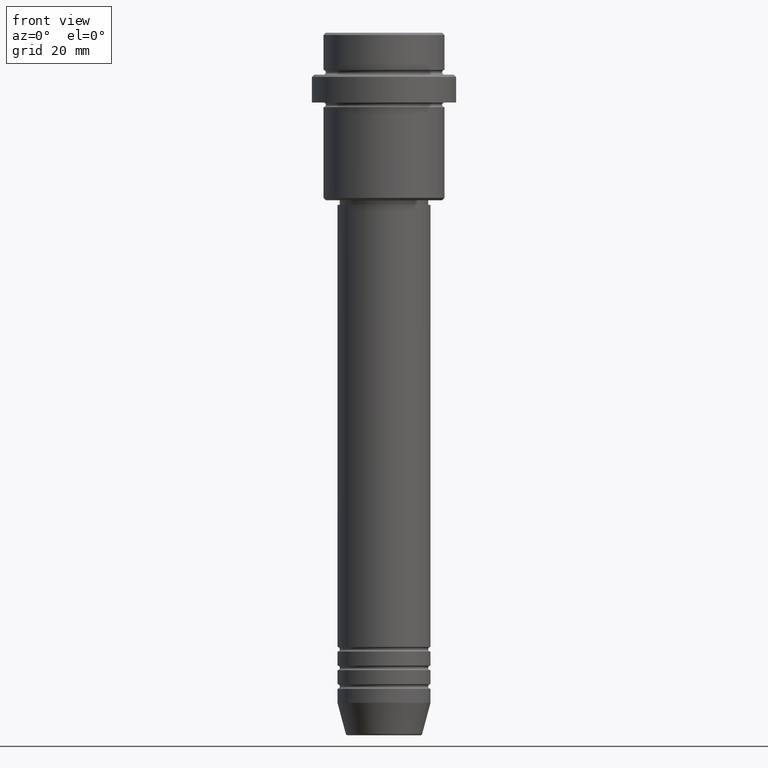
[diagram: clean part render]
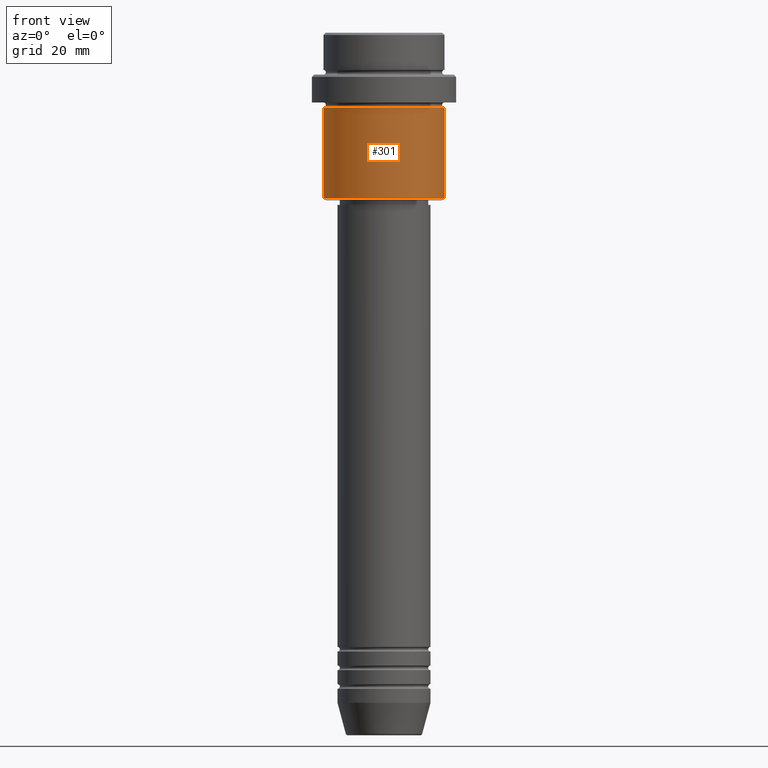
[diagram: same view with one face highlighted and labeled with its STEP entity id]
A machine part, front view. The second image highlights one B-rep face of the part: STEP entity #301.
In plain terms, the highlighted cylindrical surface (partial cylindrical patch) has radius 13 mm, axis along (-0, -0, 1).
Its self-contained STEP definition (entity closure, byte-faithful):
#8 = EDGE_CURVE ( 'NONE', #334, #921, #218, .T. ) ;
#43 = ORIENTED_EDGE ( 'NONE', *, *, #610, .T. ) ;
#96 = VERTEX_POINT ( 'NONE', #195 ) ;
#189 = LINE ( 'NONE', #627, #332 ) ;
#195 = CARTESIAN_POINT ( 'NONE',  ( -13.00000000000000000, 1.592040838891559095E-15, -35.50000000000000000 ) ) ;
#212 = DIRECTION ( 'NONE',  ( -0.000000000000000000, -0.000000000000000000, 1.000000000000000000 ) ) ;
#218 = CIRCLE ( 'NONE', #1021, 13.00000000000000000 ) ;
#301 = ADVANCED_FACE ( 'NONE', ( #965 ), #1384, .T. ) ;
#332 = VECTOR ( 'NONE', #1061, 1000.000000000000000 ) ;
#334 = VERTEX_POINT ( 'NONE', #950 ) ;
#341 = LINE ( 'NONE', #675, #1054 ) ;
#407 = CARTESIAN_POINT ( 'NONE',  ( 0.000000000000000000, 0.000000000000000000, 0.000000000000000000 ) ) ;
#411 = DIRECTION ( 'NONE',  ( 1.000000000000000000, 0.000000000000000000, 0.000000000000000000 ) ) ;
#444 = CIRCLE ( 'NONE', #790, 13.00000000000000000 ) ;
#610 = EDGE_CURVE ( 'NONE', #96, #1013, #444, .T. ) ;
#627 = CARTESIAN_POINT ( 'NONE',  ( -13.00000000000000000, 1.592040838891559095E-15, 0.000000000000000000 ) ) ;
#628 = EDGE_CURVE ( 'NONE', #96, #334, #189, .T. ) ;
#675 = CARTESIAN_POINT ( 'NONE',  ( 13.00000000000000000, 0.000000000000000000, 0.000000000000000000 ) ) ;
#714 = EDGE_LOOP ( 'NONE', ( #801, #43, #1396, #1064 ) ) ;
#790 = AXIS2_PLACEMENT_3D ( 'NONE', #1269, #212, #845 ) ;
#801 = ORIENTED_EDGE ( 'NONE', *, *, #628, .F. ) ;
#837 = DIRECTION ( 'NONE',  ( -0.000000000000000000, -0.000000000000000000, 1.000000000000000000 ) ) ;
#845 = DIRECTION ( 'NONE',  ( -1.000000000000000000, 0.000000000000000000, 0.000000000000000000 ) ) ;
#846 = DIRECTION ( 'NONE',  ( -0.000000000000000000, -0.000000000000000000, 1.000000000000000000 ) ) ;
#904 = CARTESIAN_POINT ( 'NONE',  ( 13.00000000000000000, 0.000000000000000000, -15.99999999999997335 ) ) ;
#921 = VERTEX_POINT ( 'NONE', #904 ) ;
#950 = CARTESIAN_POINT ( 'NONE',  ( -13.00000000000000000, 1.592040838891559095E-15, -15.99999999999997335 ) ) ;
#965 = FACE_OUTER_BOUND ( 'NONE', #714, .T. ) ;
#1011 = DIRECTION ( 'NONE',  ( -0.000000000000000000, -0.000000000000000000, 1.000000000000000000 ) ) ;
#1013 = VERTEX_POINT ( 'NONE', #1035 ) ;
#1021 = AXIS2_PLACEMENT_3D ( 'NONE', #1288, #837, #411 ) ;
#1035 = CARTESIAN_POINT ( 'NONE',  ( 13.00000000000000000, 0.000000000000000000, -35.50000000000000000 ) ) ;
#1054 = VECTOR ( 'NONE', #1011, 1000.000000000000000 ) ;
#1061 = DIRECTION ( 'NONE',  ( -0.000000000000000000, -0.000000000000000000, 1.000000000000000000 ) ) ;
#1064 = ORIENTED_EDGE ( 'NONE', *, *, #8, .F. ) ;
#1166 = DIRECTION ( 'NONE',  ( 1.000000000000000000, 0.000000000000000000, 0.000000000000000000 ) ) ;
#1202 = EDGE_CURVE ( 'NONE', #1013, #921, #341, .T. ) ;
#1226 = AXIS2_PLACEMENT_3D ( 'NONE', #407, #846, #1166 ) ;
#1269 = CARTESIAN_POINT ( 'NONE',  ( 0.000000000000000000, 0.000000000000000000, -35.50000000000000000 ) ) ;
#1288 = CARTESIAN_POINT ( 'NONE',  ( 0.000000000000000000, 0.000000000000000000, -15.99999999999997335 ) ) ;
#1384 = CYLINDRICAL_SURFACE ( 'NONE', #1226, 13.00000000000000000 ) ;
#1396 = ORIENTED_EDGE ( 'NONE', *, *, #1202, .T. ) ;